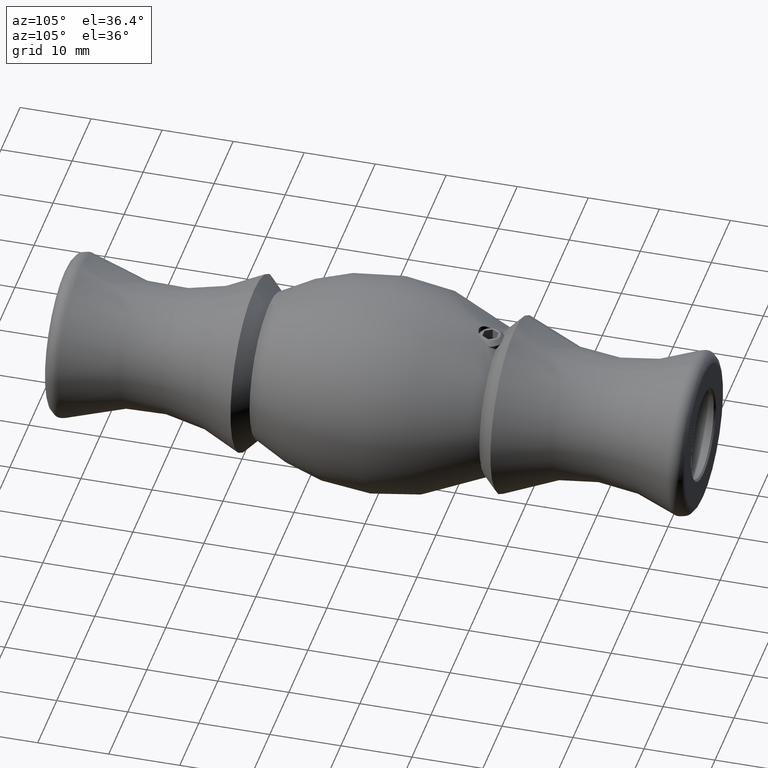
[diagram: clean part render]
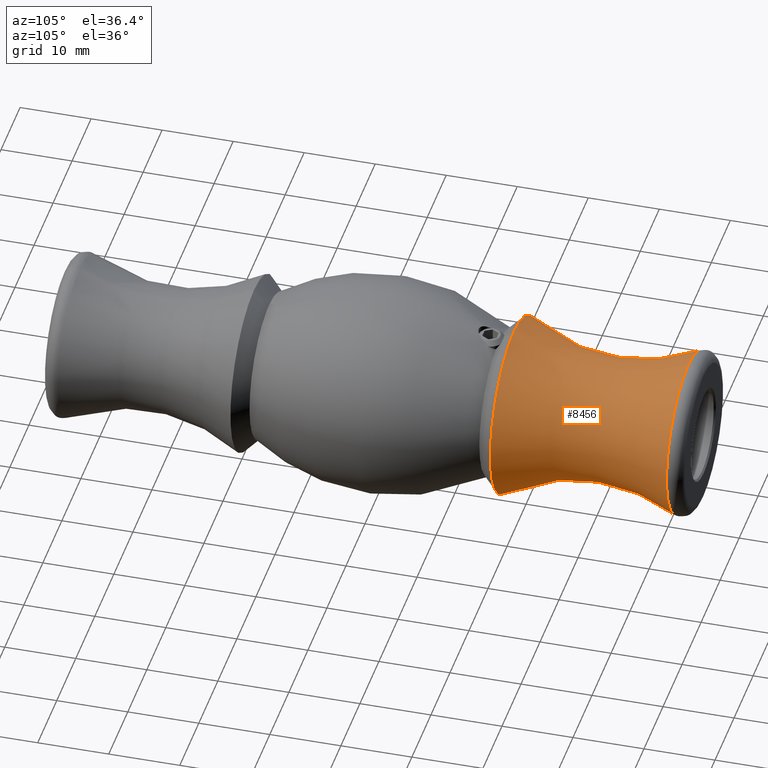
[diagram: same view with one face highlighted and labeled with its STEP entity id]
A machine part, auxiliary view. The second image highlights one B-rep face of the part: STEP entity #8456.
In plain terms, the highlighted toroidal blend (fillet) surface has major radius 33.6222 mm and minor (blend) radius 25 mm.
Its self-contained STEP definition (entity closure, byte-faithful):
#656 = CARTESIAN_POINT ( 'NONE',  ( 6.938893903907228400E-015, 31.48999999999997000, 0.0000000000000000000 ) ) ;
#986 = EDGE_CURVE ( 'NONE', #11291, #11291, #6189, .T. ) ;
#1484 = CIRCLE ( 'NONE', #3286, 12.38404353986889300 ) ;
#3059 = CARTESIAN_POINT ( 'NONE',  ( 7.426761390167614600E-015, 18.30139502529890900, 0.0000000000000000000 ) ) ;
#3286 = AXIS2_PLACEMENT_3D ( 'NONE', #3059, #7711, #10661 ) ;
#3519 = DIRECTION ( 'NONE',  ( -0.0000000000000000000, 1.000000000000000000, -0.0000000000000000000 ) ) ;
#4469 = EDGE_LOOP ( 'NONE', ( #7192 ) ) ;
#5193 = EDGE_CURVE ( 'NONE', #7557, #7557, #1484, .T. ) ;
#5212 = TOROIDAL_SURFACE ( 'NONE', #6127, 33.62223317131557800, 24.99999999999998200 ) ;
#5519 = FACE_OUTER_BOUND ( 'NONE', #11540, .T. ) ;
#6127 = AXIS2_PLACEMENT_3D ( 'NONE', #656, #10253, #10069 ) ;
#6189 = CIRCLE ( 'NONE', #6546, 11.33710753799907100 ) ;
#6546 = AXIS2_PLACEMENT_3D ( 'NONE', #9264, #3519, #11203 ) ;
#6635 = CARTESIAN_POINT ( 'NONE',  ( 7.426761390167614600E-015, 42.82018867924527000, 11.33710753799907100 ) ) ;
#7192 = ORIENTED_EDGE ( 'NONE', *, *, #986, .F. ) ;
#7557 = VERTEX_POINT ( 'NONE', #8552 ) ;
#7711 = DIRECTION ( 'NONE',  ( -0.0000000000000000000, 1.000000000000000000, -0.0000000000000000000 ) ) ;
#8456 = ADVANCED_FACE ( 'NONE', ( #10463, #5519 ), #5212, .F. ) ;
#8552 = CARTESIAN_POINT ( 'NONE',  ( 7.426761390167614600E-015, 18.30139502529890900, 12.38404353986889300 ) ) ;
#8870 = ORIENTED_EDGE ( 'NONE', *, *, #5193, .T. ) ;
#9264 = CARTESIAN_POINT ( 'NONE',  ( 7.426761390167614600E-015, 42.82018867924527000, 0.0000000000000000000 ) ) ;
#10069 = DIRECTION ( 'NONE',  ( 0.0000000000000000000, 0.0000000000000000000, 1.000000000000000000 ) ) ;
#10253 = DIRECTION ( 'NONE',  ( -0.0000000000000000000, 1.000000000000000000, -0.0000000000000000000 ) ) ;
#10463 = FACE_OUTER_BOUND ( 'NONE', #4469, .T. ) ;
#10661 = DIRECTION ( 'NONE',  ( 0.0000000000000000000, 0.0000000000000000000, 1.000000000000000000 ) ) ;
#11203 = DIRECTION ( 'NONE',  ( 0.0000000000000000000, 0.0000000000000000000, 1.000000000000000000 ) ) ;
#11291 = VERTEX_POINT ( 'NONE', #6635 ) ;
#11540 = EDGE_LOOP ( 'NONE', ( #8870 ) ) ;